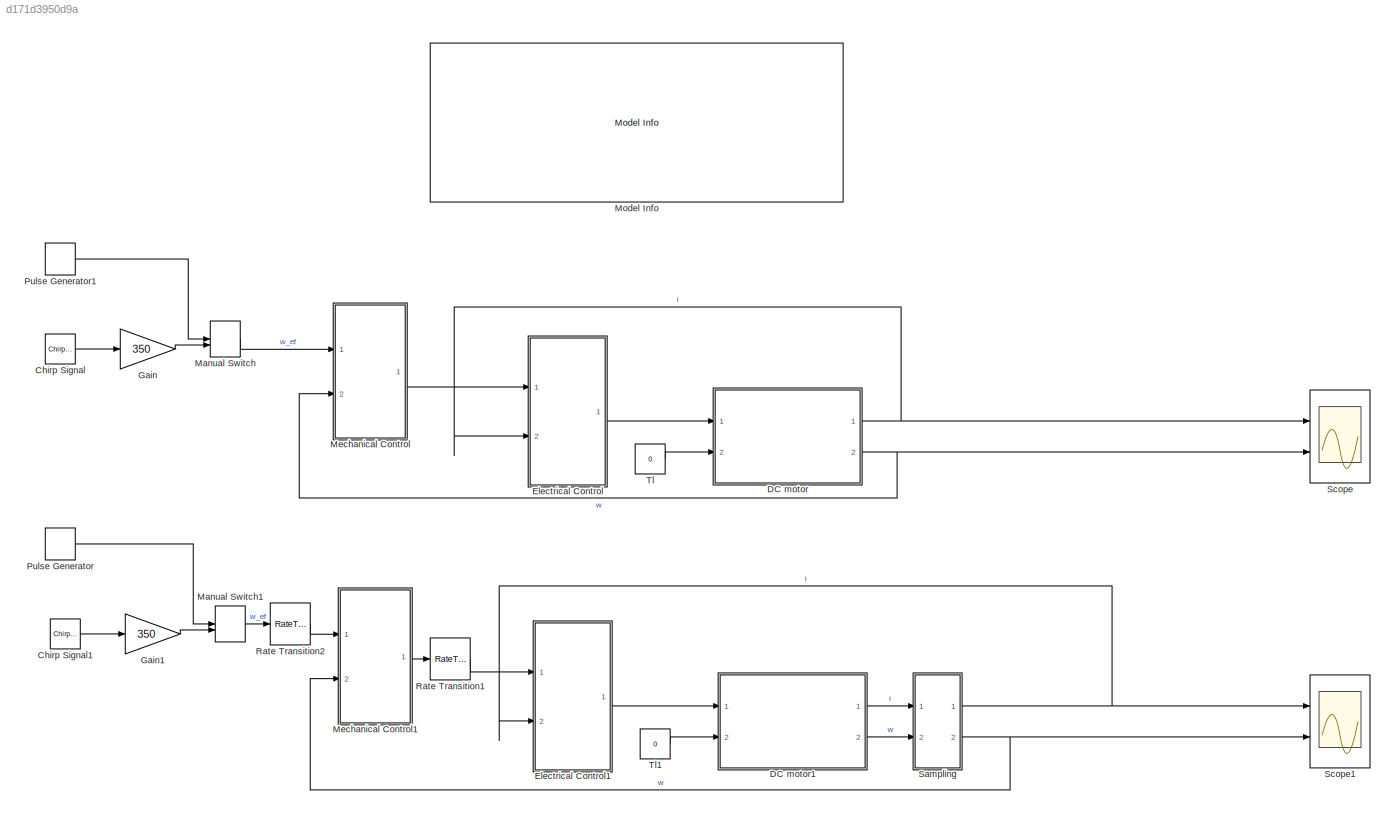
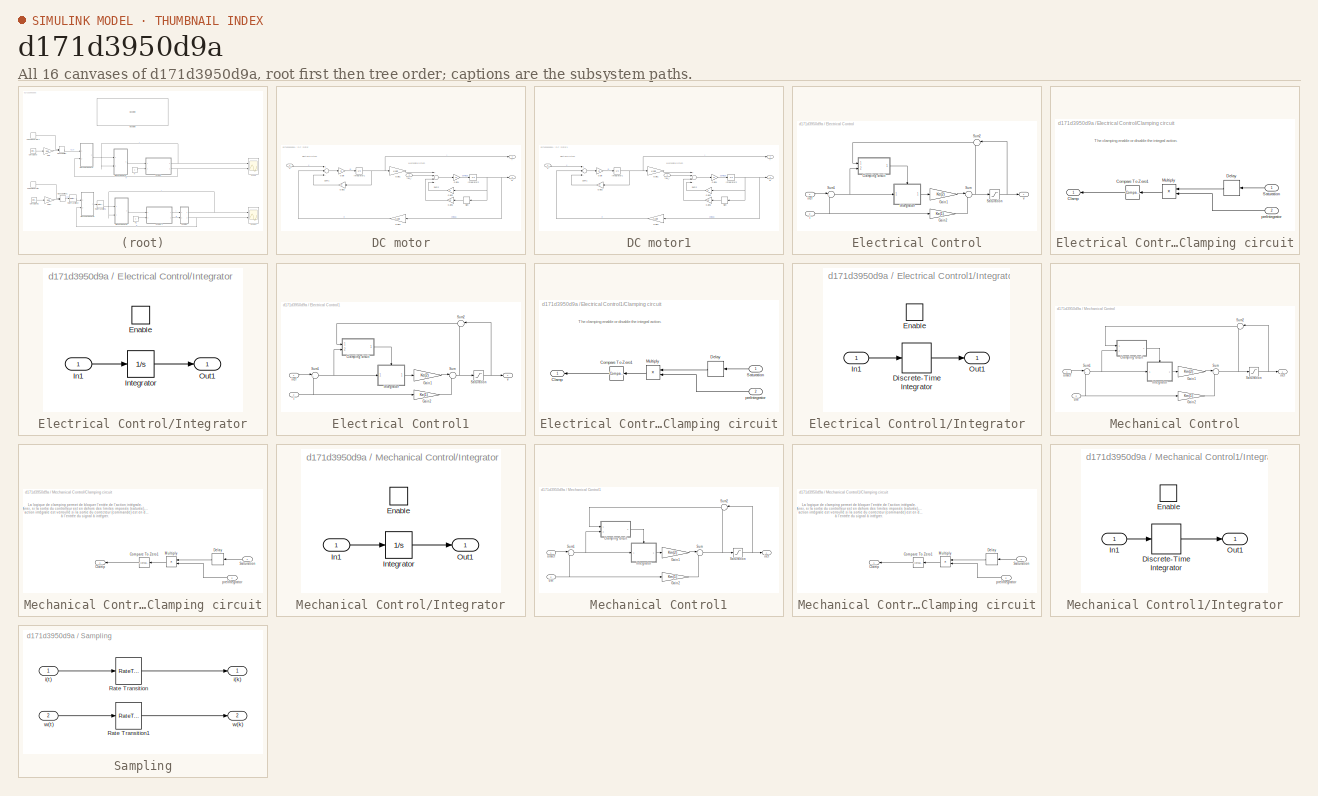
[diagram: thumbnail index - all 16 canvases of the model, root first then tree order]
MODEL slx_d171d3950d9a
KIND model
CONFIG AbsTol = auto
CONFIG EnableMultiTasking = off
CONFIG FixedStep = auto
CONFIG MaxStep = Ts
CONFIG MinStep = auto
CONFIG RelTol = 1e-3
CONFIG SampleTimeConstraint = Unconstrained
CONFIG Solver = VariableStepAuto
CONFIG SolverName = VariableStepAuto
CONFIG StartTime = 0.0
CONFIG StopTime = 25
BLOCK [Reference] Chirp Signal  REF=simulink/Sources/Chirp Signal
  Ports = [0, 1]
  SourceBlock = simulink/Sources/Chirp Signal
  SourceProductBaseCode = SL
  SourceProductName = Simulink
  SourceType = chirp
BLOCK [Reference] Chirp Signal1  REF=simulink/Sources/Chirp Signal
  Ports = [0, 1]
  SourceBlock = simulink/Sources/Chirp Signal
  SourceProductBaseCode = SL
  SourceProductName = Simulink
  SourceType = chirp
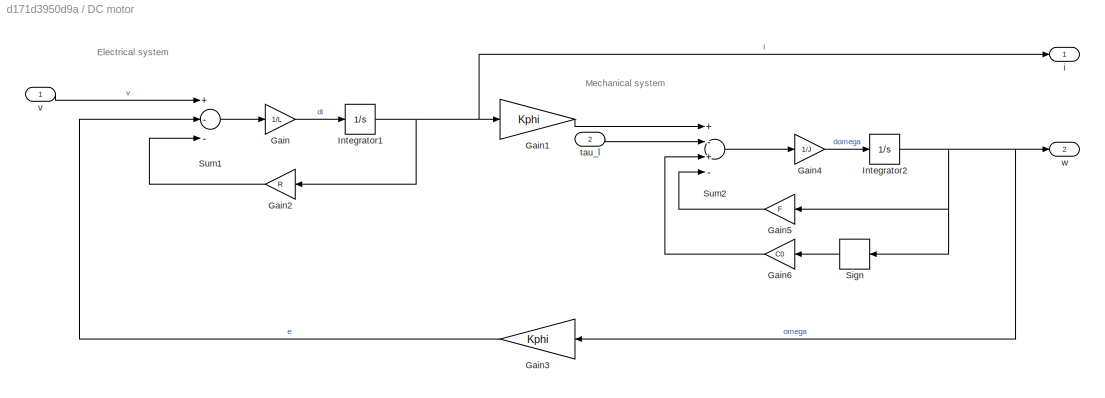
BLOCK [SubSystem] DC motor
  Ports = [2, 2]
  RequestExecContextInheritance = off
BLOCK [Gain] DC motor/Gain
  Gain = 1/L
  OutDataTypeStr = Inherit: Inherit via internal rule
  ParamDataTypeStr = Inherit: Inherit via internal rule
  SaturateOnIntegerOverflow = off
BLOCK [Gain] DC motor/Gain1
  Gain = Kphi
  OutDataTypeStr = Inherit: Inherit via internal rule
  ParamDataTypeStr = Inherit: Inherit via internal rule
  SaturateOnIntegerOverflow = off
BLOCK [Gain] DC motor/Gain2
  Gain = R
  OutDataTypeStr = Inherit: Inherit via internal rule
  ParamDataTypeStr = Inherit: Inherit via internal rule
  SaturateOnIntegerOverflow = off
BLOCK [Gain] DC motor/Gain3  
  Gain = Kphi
  OutDataTypeStr = Inherit: Inherit via internal rule
  ParamDataTypeStr = Inherit: Inherit via internal rule
  SaturateOnIntegerOverflow = off
BLOCK [Gain] DC motor/Gain4
  Gain = 1/J
  OutDataTypeStr = Inherit: Inherit via internal rule
  ParamDataTypeStr = Inherit: Inherit via internal rule
  SaturateOnIntegerOverflow = off
BLOCK [Gain] DC motor/Gain5
  Gain = F
  OutDataTypeStr = Inherit: Inherit via internal rule
  ParamDataTypeStr = Inherit: Inherit via internal rule
  SaturateOnIntegerOverflow = off
BLOCK [Gain] DC motor/Gain6
  Gain = C0
  OutDataTypeStr = Inherit: Inherit via internal rule
  ParamDataTypeStr = Inherit: Inherit via internal rule
  SaturateOnIntegerOverflow = off
BLOCK [Integrator] DC motor/Integrator1
  Ports = [1, 1]
BLOCK [Integrator] DC motor/Integrator2
  Ports = [1, 1]
BLOCK [Signum] DC motor/Sign
BLOCK [Sum] DC motor/Sum1
  InputSameDT = off
  Inputs = +--
  OutDataTypeStr = Inherit: Inherit via internal rule
  Ports = [3, 1]
  SaturateOnIntegerOverflow = off
BLOCK [Sum] DC motor/Sum2
  InputSameDT = off
  Inputs = +-+-
  OutDataTypeStr = Inherit: Inherit via internal rule
  Ports = [4, 1]
  SaturateOnIntegerOverflow = off
BLOCK [Outport] DC motor/i
  IconDisplay = Port number
BLOCK [Inport] DC motor/tau_l
  IconDisplay = Port number
  Port = 2
BLOCK [Inport] DC motor/v
  IconDisplay = Port number
  SampleTime = 0
BLOCK [Outport] DC motor/w
  IconDisplay = Port number
  Port = 2
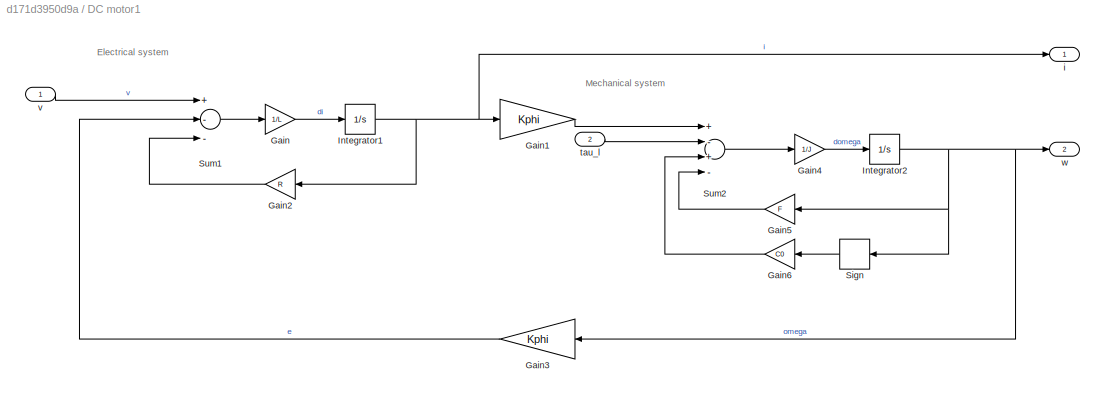
BLOCK [SubSystem] DC motor1
  Ports = [2, 2]
  RequestExecContextInheritance = off
BLOCK [Gain] DC motor1/Gain
  Gain = 1/L
  OutDataTypeStr = Inherit: Inherit via internal rule
  ParamDataTypeStr = Inherit: Inherit via internal rule
  SaturateOnIntegerOverflow = off
BLOCK [Gain] DC motor1/Gain1
  Gain = Kphi
  OutDataTypeStr = Inherit: Inherit via internal rule
  ParamDataTypeStr = Inherit: Inherit via internal rule
  SaturateOnIntegerOverflow = off
BLOCK [Gain] DC motor1/Gain2
  Gain = R
  OutDataTypeStr = Inherit: Inherit via internal rule
  ParamDataTypeStr = Inherit: Inherit via internal rule
  SaturateOnIntegerOverflow = off
BLOCK [Gain] DC motor1/Gain3  
  Gain = Kphi
  OutDataTypeStr = Inherit: Inherit via internal rule
  ParamDataTypeStr = Inherit: Inherit via internal rule
  SaturateOnIntegerOverflow = off
BLOCK [Gain] DC motor1/Gain4
  Gain = 1/J
  OutDataTypeStr = Inherit: Inherit via internal rule
  ParamDataTypeStr = Inherit: Inherit via internal rule
  SaturateOnIntegerOverflow = off
BLOCK [Gain] DC motor1/Gain5
  Gain = F
  OutDataTypeStr = Inherit: Inherit via internal rule
  ParamDataTypeStr = Inherit: Inherit via internal rule
  SaturateOnIntegerOverflow = off
BLOCK [Gain] DC motor1/Gain6
  Gain = C0
  OutDataTypeStr = Inherit: Inherit via internal rule
  ParamDataTypeStr = Inherit: Inherit via internal rule
  SaturateOnIntegerOverflow = off
BLOCK [Integrator] DC motor1/Integrator1
  Ports = [1, 1]
BLOCK [Integrator] DC motor1/Integrator2
  Ports = [1, 1]
BLOCK [Signum] DC motor1/Sign
BLOCK [Sum] DC motor1/Sum1
  InputSameDT = off
  Inputs = +--
  OutDataTypeStr = Inherit: Inherit via internal rule
  Ports = [3, 1]
  SaturateOnIntegerOverflow = off
BLOCK [Sum] DC motor1/Sum2
  InputSameDT = off
  Inputs = +-+-
  OutDataTypeStr = Inherit: Inherit via internal rule
  Ports = [4, 1]
  SaturateOnIntegerOverflow = off
BLOCK [Outport] DC motor1/i
  IconDisplay = Port number
BLOCK [Inport] DC motor1/tau_l
  IconDisplay = Port number
  Port = 2
BLOCK [Inport] DC motor1/v
  IconDisplay = Port number
  SampleTime = 0
BLOCK [Outport] DC motor1/w
  IconDisplay = Port number
  Port = 2
BLOCK [SubSystem] Electrical Control
  Ports = [2, 1]
  RequestExecContextInheritance = off
BLOCK [SubSystem] Electrical Control/Clamping circuit
  Ports = [2, 1]
  RequestExecContextInheritance = off
BLOCK [Outport] Electrical Control/Clamping circuit/Clamp
  DisableCoverage = on
  IconDisplay = Port number
BLOCK [Reference] Electrical Control/Clamping circuit/Compare To Zero1  REF=simulink/Logic and Bit
Operations/Compare
To Zero
  Ports = [1, 1]
  SourceBlock = simulink/Logic and Bit\nOperations/Compare\nTo Zero
  SourceProductBaseCode = SL
  SourceProductName = Simulink
  SourceType = Compare To Zero
BLOCK [Delay] Electrical Control/Clamping circuit/Delay
  DelayLength = 1
  InitialCondition = 0
  InputPortMap = u0
  Ports = [1, 1]
BLOCK [Product] Electrical Control/Clamping circuit/Multiply
  InputSameDT = off
  OutDataTypeStr = Inherit: Inherit via internal rule
  Ports = [2, 1]
  RndMeth = Floor
  SaturateOnIntegerOverflow = off
BLOCK [Inport] Electrical Control/Clamping circuit/Saturation
  DisableCoverage = on
  IconDisplay = Port number
BLOCK [Inport] Electrical Control/Clamping circuit/preIntegrator
  DisableCoverage = on
  IconDisplay = Port number
  Port = 2
  VarSizeSig = No
BLOCK [Gain] Electrical Control/Gain1
  Gain = Ke(2)
  OutDataTypeStr = Inherit: Inherit via internal rule
  ParamDataTypeStr = Inherit: Inherit via internal rule
  SaturateOnIntegerOverflow = off
BLOCK [Gain] Electrical Control/Gain2
  Gain = Ke(1)
  OutDataTypeStr = Inherit: Inherit via internal rule
  ParamDataTypeStr = Inherit: Inherit via internal rule
  SaturateOnIntegerOverflow = off
BLOCK [SubSystem] Electrical Control/Integrator
  Ports = [1, 1, 1]
  RequestExecContextInheritance = off
BLOCK [EnablePort] Electrical Control/Integrator/Enable
  Ports = []
BLOCK [Inport] Electrical Control/Integrator/In1
  IconDisplay = Port number
BLOCK [Integrator] Electrical Control/Integrator/Integrator
  Ports = [1, 1]
BLOCK [Outport] Electrical Control/Integrator/Out1
  IconDisplay = Port number
BLOCK [Saturate] Electrical Control/Saturation
  InputPortMap = u0
  LowerLimit = Vmin
  Ports = [1, 1]
  UpperLimit = Vmax
BLOCK [Sum] Electrical Control/Sum
  IconShape = round
  InputSameDT = off
  Inputs = |--
  OutDataTypeStr = Inherit: Inherit via internal rule
  Ports = [2, 1]
  SaturateOnIntegerOverflow = off
BLOCK [Sum] Electrical Control/Sum1
  IconShape = round
  InputSameDT = off
  Inputs = |+-
  OutDataTypeStr = Inherit: Inherit via internal rule
  Ports = [2, 1]
  SaturateOnIntegerOverflow = off
BLOCK [Sum] Electrical Control/Sum2
  AccumDataTypeStr = Inherit: Same as first input
  IconShape = round
  InputSameDT = off
  Inputs = |-+
  OutDataTypeStr = Inherit: Same as accumulator
  Ports = [2, 1]
  SaturateOnIntegerOverflow = off
BLOCK [Inport] Electrical Control/i
  IconDisplay = Port number
  Port = 2
BLOCK [Inport] Electrical Control/iref
  IconDisplay = Port number
BLOCK [Outport] Electrical Control/v
  IconDisplay = Port number
BLOCK [SubSystem] Electrical Control1
  Ports = [2, 1]
  RequestExecContextInheritance = off
BLOCK [SubSystem] Electrical Control1/Clamping circuit
  Ports = [2, 1]
  RequestExecContextInheritance = off
BLOCK [Outport] Electrical Control1/Clamping circuit/Clamp
  DisableCoverage = on
  IconDisplay = Port number
BLOCK [Reference] Electrical Control1/Clamping circuit/Compare To Zero1  REF=simulink/Logic and Bit
Operations/Compare
To Zero
  Ports = [1, 1]
  SourceBlock = simulink/Logic and Bit\nOperations/Compare\nTo Zero
  SourceProductBaseCode = SL
  SourceProductName = Simulink
  SourceType = Compare To Zero
BLOCK [Delay] Electrical Control1/Clamping circuit/Delay
  DelayLength = 1
  InitialCondition = 0
  InputPortMap = u0
  Ports = [1, 1]
BLOCK [Product] Electrical Control1/Clamping circuit/Multiply
  InputSameDT = off
  OutDataTypeStr = Inherit: Inherit via internal rule
  Ports = [2, 1]
  RndMeth = Floor
  SaturateOnIntegerOverflow = off
BLOCK [Inport] Electrical Control1/Clamping circuit/Saturation
  DisableCoverage = on
  IconDisplay = Port number
BLOCK [Inport] Electrical Control1/Clamping circuit/preIntegrator
  DisableCoverage = on
  IconDisplay = Port number
  Port = 2
  VarSizeSig = No
BLOCK [Gain] Electrical Control1/Gain1
  Gain = Ke(2)
  OutDataTypeStr = Inherit: Inherit via internal rule
  ParamDataTypeStr = Inherit: Inherit via internal rule
  SaturateOnIntegerOverflow = off
BLOCK [Gain] Electrical Control1/Gain2
  Gain = Ke(1)
  OutDataTypeStr = Inherit: Inherit via internal rule
  ParamDataTypeStr = Inherit: Inherit via internal rule
  SaturateOnIntegerOverflow = off
BLOCK [SubSystem] Electrical Control1/Integrator
  Ports = [1, 1, 1]
  RequestExecContextInheritance = off
BLOCK [DiscreteIntegrator] Electrical Control1/Integrator/Discrete-Time Integrator
  ICPrevOutput = DiscIntNeverNeededParam
  ICPrevScaledInput = DiscIntNeverNeededParam
  InitialConditionSetting = Auto
  Ports = [1, 1]
  SampleTime = Ts
BLOCK [EnablePort] Electrical Control1/Integrator/Enable
  Ports = []
BLOCK [Inport] Electrical Control1/Integrator/In1
  IconDisplay = Port number
BLOCK [Outport] Electrical Control1/Integrator/Out1
  IconDisplay = Port number
BLOCK [Saturate] Electrical Control1/Saturation
  InputPortMap = u0
  LowerLimit = Vmin
  Ports = [1, 1]
  UpperLimit = Vmax
BLOCK [Sum] Electrical Control1/Sum
  IconShape = round
  InputSameDT = off
  Inputs = |--
  OutDataTypeStr = Inherit: Inherit via internal rule
  Ports = [2, 1]
  SaturateOnIntegerOverflow = off
BLOCK [Sum] Electrical Control1/Sum1
  IconShape = round
  InputSameDT = off
  Inputs = |+-
  OutDataTypeStr = Inherit: Inherit via internal rule
  Ports = [2, 1]
  SaturateOnIntegerOverflow = off
BLOCK [Sum] Electrical Control1/Sum2
  AccumDataTypeStr = Inherit: Same as first input
  IconShape = round
  InputSameDT = off
  Inputs = |-+
  OutDataTypeStr = Inherit: Same as accumulator
  Ports = [2, 1]
  SaturateOnIntegerOverflow = off
BLOCK [Inport] Electrical Control1/i
  IconDisplay = Port number
  Port = 2
BLOCK [Inport] Electrical Control1/iref
  IconDisplay = Port number
BLOCK [Outport] Electrical Control1/v
  IconDisplay = Port number
BLOCK [Gain] Gain
  Gain = 350
  OutDataTypeStr = Inherit: Inherit via back propagation
  ParamDataTypeStr = Inherit: Inherit via internal rule
  SaturateOnIntegerOverflow = off
BLOCK [Gain] Gain1
  Gain = 350
  OutDataTypeStr = Inherit: Inherit via back propagation
  ParamDataTypeStr = Inherit: Inherit via internal rule
  SaturateOnIntegerOverflow = off
BLOCK [ManualSwitch] Manual Switch
BLOCK [ManualSwitch] Manual Switch1
BLOCK [SubSystem] Mechanical Control
  Ports = [2, 1]
  RequestExecContextInheritance = off
BLOCK [SubSystem] Mechanical Control/Clamping circuit
  Ports = [2, 1]
  RequestExecContextInheritance = off
BLOCK [Outport] Mechanical Control/Clamping circuit/Clamp
  DisableCoverage = on
  IconDisplay = Port number
BLOCK [Reference] Mechanical Control/Clamping circuit/Compare To Zero1  REF=simulink/Logic and Bit
Operations/Compare
To Zero
  Ports = [1, 1]
  SourceBlock = simulink/Logic and Bit\nOperations/Compare\nTo Zero
  SourceProductBaseCode = SL
  SourceProductName = Simulink
  SourceType = Compare To Zero
BLOCK [Delay] Mechanical Control/Clamping circuit/Delay
  DelayLength = 1
  InitialCondition = 0
  InputPortMap = u0
  Ports = [1, 1]
BLOCK [Product] Mechanical Control/Clamping circuit/Multiply
  InputSameDT = off
  OutDataTypeStr = Inherit: Inherit via internal rule
  Ports = [2, 1]
  RndMeth = Floor
  SaturateOnIntegerOverflow = off
BLOCK [Inport] Mechanical Control/Clamping circuit/Saturation
  DisableCoverage = on
  IconDisplay = Port number
BLOCK [Inport] Mechanical Control/Clamping circuit/preIntegrator
  DisableCoverage = on
  IconDisplay = Port number
  Port = 2
  VarSizeSig = No
BLOCK [Gain] Mechanical Control/Gain1
  Gain = Km(2)
  OutDataTypeStr = Inherit: Inherit via internal rule
  ParamDataTypeStr = Inherit: Inherit via internal rule
  SaturateOnIntegerOverflow = off
BLOCK [Gain] Mechanical Control/Gain2
  Gain = Km(1)
  OutDataTypeStr = Inherit: Inherit via internal rule
  ParamDataTypeStr = Inherit: Inherit via internal rule
  SaturateOnIntegerOverflow = off
BLOCK [SubSystem] Mechanical Control/Integrator
  Ports = [1, 1, 1]
  RequestExecContextInheritance = off
BLOCK [EnablePort] Mechanical Control/Integrator/Enable
  Ports = []
BLOCK [Inport] Mechanical Control/Integrator/In1
  IconDisplay = Port number
BLOCK [Integrator] Mechanical Control/Integrator/Integrator
  Ports = [1, 1]
BLOCK [Outport] Mechanical Control/Integrator/Out1
  IconDisplay = Port number
BLOCK [Saturate] Mechanical Control/Saturation
  InputPortMap = u0
  LowerLimit = Imin
  Ports = [1, 1]
  UpperLimit = Imax
BLOCK [Sum] Mechanical Control/Sum
  IconShape = round
  InputSameDT = off
  Inputs = |--
  OutDataTypeStr = Inherit: Inherit via internal rule
  Ports = [2, 1]
  SaturateOnIntegerOverflow = off
BLOCK [Sum] Mechanical Control/Sum1
  IconShape = round
  InputSameDT = off
  Inputs = |+-
  OutDataTypeStr = Inherit: Inherit via internal rule
  Ports = [2, 1]
  SaturateOnIntegerOverflow = off
BLOCK [Sum] Mechanical Control/Sum2
  AccumDataTypeStr = Inherit: Same as first input
  IconShape = round
  InputSameDT = off
  Inputs = |-+
  OutDataTypeStr = Inherit: Same as accumulator
  Ports = [2, 1]
  SaturateOnIntegerOverflow = off
BLOCK [Outport] Mechanical Control/iref
  IconDisplay = Port number
BLOCK [Inport] Mechanical Control/om
  IconDisplay = Port number
  Port = 2
BLOCK [Inport] Mechanical Control/omref
  IconDisplay = Port number
BLOCK [SubSystem] Mechanical Control1
  Ports = [2, 1]
  RequestExecContextInheritance = off
BLOCK [SubSystem] Mechanical Control1/Clamping circuit
  Ports = [2, 1]
  RequestExecContextInheritance = off
BLOCK [Outport] Mechanical Control1/Clamping circuit/Clamp
  DisableCoverage = on
  IconDisplay = Port number
BLOCK [Reference] Mechanical Control1/Clamping circuit/Compare To Zero1  REF=simulink/Logic and Bit
Operations/Compare
To Zero
  Ports = [1, 1]
  SourceBlock = simulink/Logic and Bit\nOperations/Compare\nTo Zero
  SourceProductBaseCode = SL
  SourceProductName = Simulink
  SourceType = Compare To Zero
BLOCK [Delay] Mechanical Control1/Clamping circuit/Delay
  DelayLength = 1
  InitialCondition = 0
  InputPortMap = u0
  Ports = [1, 1]
BLOCK [Product] Mechanical Control1/Clamping circuit/Multiply
  InputSameDT = off
  OutDataTypeStr = Inherit: Inherit via internal rule
  Ports = [2, 1]
  RndMeth = Floor
  SaturateOnIntegerOverflow = off
BLOCK [Inport] Mechanical Control1/Clamping circuit/Saturation
  DisableCoverage = on
  IconDisplay = Port number
BLOCK [Inport] Mechanical Control1/Clamping circuit/preIntegrator
  DisableCoverage = on
  IconDisplay = Port number
  Port = 2
  VarSizeSig = No
BLOCK [Gain] Mechanical Control1/Gain1
  Gain = Km(2)
  OutDataTypeStr = Inherit: Inherit via internal rule
  ParamDataTypeStr = Inherit: Inherit via internal rule
  SaturateOnIntegerOverflow = off
BLOCK [Gain] Mechanical Control1/Gain2
  Gain = Km(1)
  OutDataTypeStr = Inherit: Inherit via internal rule
  ParamDataTypeStr = Inherit: Inherit via internal rule
  SaturateOnIntegerOverflow = off
BLOCK [SubSystem] Mechanical Control1/Integrator
  Ports = [1, 1, 1]
  RequestExecContextInheritance = off
BLOCK [DiscreteIntegrator] Mechanical Control1/Integrator/Discrete-Time Integrator
  ICPrevOutput = DiscIntNeverNeededParam
  ICPrevScaledInput = DiscIntNeverNeededParam
  InitialConditionSetting = Auto
  Ports = [1, 1]
  SampleTime = TsMeca
BLOCK [EnablePort] Mechanical Control1/Integrator/Enable
  Ports = []
BLOCK [Inport] Mechanical Control1/Integrator/In1
  IconDisplay = Port number
BLOCK [Outport] Mechanical Control1/Integrator/Out1
  IconDisplay = Port number
BLOCK [Saturate] Mechanical Control1/Saturation
  InputPortMap = u0
  LowerLimit = Imin
  Ports = [1, 1]
  UpperLimit = Imax
BLOCK [Sum] Mechanical Control1/Sum
  IconShape = round
  InputSameDT = off
  Inputs = |--
  OutDataTypeStr = Inherit: Inherit via internal rule
  Ports = [2, 1]
  SaturateOnIntegerOverflow = off
BLOCK [Sum] Mechanical Control1/Sum1
  IconShape = round
  InputSameDT = off
  Inputs = |+-
  OutDataTypeStr = Inherit: Inherit via internal rule
  Ports = [2, 1]
  SaturateOnIntegerOverflow = off
BLOCK [Sum] Mechanical Control1/Sum2
  AccumDataTypeStr = Inherit: Same as first input
  IconShape = round
  InputSameDT = off
  Inputs = |-+
  OutDataTypeStr = Inherit: Same as accumulator
  Ports = [2, 1]
  SaturateOnIntegerOverflow = off
BLOCK [Outport] Mechanical Control1/iref
  IconDisplay = Port number
BLOCK [Inport] Mechanical Control1/om
  IconDisplay = Port number
  Port = 2
BLOCK [Inport] Mechanical Control1/omref
  IconDisplay = Port number
BLOCK [Reference] Model Info  REF=simulink/Model-Wide
Utilities/Model Info
  Ports = []
  SourceBlock = simulink/Model-Wide\nUtilities/Model Info
  SourceProductBaseCode = SL
  SourceProductName = Simulink
  SourceType = CMBlock
BLOCK [DiscretePulseGenerator] Pulse Generator
  Amplitude = 200
  PhaseDelay = 0.5
  Ports = [0, 1]
  PulseType = Time based
  PulseWidth = 50
  SampleTime = -1
BLOCK [DiscretePulseGenerator] Pulse Generator1
  Amplitude = 200
  PhaseDelay = 0.5
  Ports = [0, 1]
  PulseType = Time based
  PulseWidth = 50
  SampleTime = -1
BLOCK [RateTransition] Rate Transition1
  Deterministic = off
BLOCK [RateTransition] Rate Transition2
  Deterministic = off
BLOCK [SubSystem] Sampling
  Ports = [2, 2]
  RequestExecContextInheritance = off
BLOCK [RateTransition] Sampling/Rate Transition
  Deterministic = off
  OutPortSampleTime = Ts
BLOCK [RateTransition] Sampling/Rate Transition1
  Deterministic = off
  OutPortSampleTime = TsMeca
BLOCK [Outport] Sampling/i(k)
  IconDisplay = Port number
BLOCK [Inport] Sampling/i(t)
  IconDisplay = Port number
BLOCK [Outport] Sampling/w(k)
  IconDisplay = Port number
  Port = 2
BLOCK [Inport] Sampling/w(t)
  IconDisplay = Port number
  Port = 2
BLOCK [Scope] Scope
  Floating = off
  NumInputPorts = 2
  Ports = [2]
  ScopeSpecificationString = Simulink.scopes.TimeScopeBlockCfg('CurrentConfiguration', extmgr.ConfigurationSet(extmgr.Configuration('Core','General UI',true),extmgr.Configuration('Core','Source UI',true),extmgr.Configuration('Sources','WiredSimulink',true),extmgr.Configuration('Visuals','Time Domain',true,'SerializedDisplays',{struct('MinYLimReal','-3.55718','MaxYLimReal','3.89083','YLabelReal','','MinYLimMag','0.00000','MaxY...<+1956ch>
BLOCK [Scope] Scope1
  Floating = off
  NumInputPorts = 2
  Ports = [2]
  ScopeSpecificationString = Simulink.scopes.TimeScopeBlockCfg('CurrentConfiguration', extmgr.ConfigurationSet(extmgr.Configuration('Core','General UI',true),extmgr.Configuration('Core','Source UI',true),extmgr.Configuration('Sources','WiredSimulink',true,'DataLoggingVariableName','ScopeData1'),extmgr.Configuration('Visuals','Time Domain',true,'SerializedDisplays',{struct('MinYLimReal','-5.66771','MaxYLimReal','5.80576','YLab...<+2042ch>
BLOCK [Constant] Tl
  Value = 0
BLOCK [Constant] Tl1
  Value = 0
ANNOTATION DC motor: Electrical system
ANNOTATION DC motor: Mechanical system
ANNOTATION DC motor1: Electrical system
ANNOTATION DC motor1: Mechanical system
ANNOTATION Electrical Control/Clamping circuit: The clamping enable or disable the integral action.
ANNOTATION Electrical Control1/Clamping circuit: The clamping enable or disable the integral action.
ANNOTATION Mechanical Control/Clamping circuit: La logique de clamping permet de bloquer l'entée de l'action intégrale. Ainsi, si la sortie du controlleur est en dehors des limites imposés (saturée), alors l'action intégrale du correcteur est verrouyé (clamping). L'action intégrale est verroullé si la sortie du correcteur (commande) est en dehors des saturations et que le signe de cette sortie est égale à l'entrée du signal à intégrer.
ANNOTATION Mechanical Control1/Clamping circuit: La logique de clamping permet de bloquer l'entée de l'action intégrale. Ainsi, si la sortie du controlleur est en dehors des limites imposés (saturée), alors l'action intégrale du correcteur est verrouyé (clamping). L'action intégrale est verroullé si la sortie du correcteur (commande) est en dehors des saturations et que le signe de cette sortie est égale à l'entrée du signal à intégrer.
LINE Chirp Signal1:1 -> Gain1:1
LINE Chirp Signal:1 -> Gain:1
LINE DC motor/Gain1:1 -> DC motor/Sum2:1
LINE DC motor/Gain2:1 -> DC motor/Sum1:3
LINE DC motor/Gain3  :1 -> DC motor/Sum1:2
LINE DC motor/Gain4:1 -> DC motor/Integrator2:1
LINE DC motor/Gain5:1 -> DC motor/Sum2:4
LINE DC motor/Gain6:1 -> DC motor/Sum2:3
LINE DC motor/Gain:1 -> DC motor/Integrator1:1
NET DC motor/Integrator1:1 -> DC motor/Gain1:1, DC motor/Gain2:1, DC motor/i:1
NET DC motor/Integrator2:1 -> DC motor/Gain3  :1, DC motor/Gain5:1, DC motor/Sign:1, DC motor/w:1
LINE DC motor/Sign:1 -> DC motor/Gain6:1
LINE DC motor/Sum1:1 -> DC motor/Gain:1
LINE DC motor/Sum2:1 -> DC motor/Gain4:1
LINE DC motor/tau_l:1 -> DC motor/Sum2:2
LINE DC motor/v:1 -> DC motor/Sum1:1
LINE DC motor1/Gain1:1 -> DC motor1/Sum2:1
LINE DC motor1/Gain2:1 -> DC motor1/Sum1:3
LINE DC motor1/Gain3  :1 -> DC motor1/Sum1:2
LINE DC motor1/Gain4:1 -> DC motor1/Integrator2:1
LINE DC motor1/Gain5:1 -> DC motor1/Sum2:4
LINE DC motor1/Gain6:1 -> DC motor1/Sum2:3
LINE DC motor1/Gain:1 -> DC motor1/Integrator1:1
NET DC motor1/Integrator1:1 -> DC motor1/Gain1:1, DC motor1/Gain2:1, DC motor1/i:1
NET DC motor1/Integrator2:1 -> DC motor1/Gain3  :1, DC motor1/Gain5:1, DC motor1/Sign:1, DC motor1/w:1
LINE DC motor1/Sign:1 -> DC motor1/Gain6:1
LINE DC motor1/Sum1:1 -> DC motor1/Gain:1
LINE DC motor1/Sum2:1 -> DC motor1/Gain4:1
LINE DC motor1/tau_l:1 -> DC motor1/Sum2:2
LINE DC motor1/v:1 -> DC motor1/Sum1:1
LINE DC motor1:1 -> Sampling:1
LINE DC motor1:2 -> Sampling:2
NET DC motor:1 -> Electrical Control:2, Scope:1
NET DC motor:2 -> Mechanical Control:2, Scope:2
LINE Electrical Control/Clamping circuit/Compare To Zero1:1 -> Electrical Control/Clamping circuit/Clamp:1
LINE Electrical Control/Clamping circuit/Delay:1 -> Electrical Control/Clamping circuit/Multiply:1
LINE Electrical Control/Clamping circuit/Multiply:1 -> Electrical Control/Clamping circuit/Compare To Zero1:1
LINE Electrical Control/Clamping circuit/Saturation:1 -> Electrical Control/Clamping circuit/Delay:1
LINE Electrical Control/Clamping circuit/preIntegrator:1 -> Electrical Control/Clamping circuit/Multiply:2
LINE Electrical Control/Clamping circuit:1 -> Electrical Control/Integrator:enable
LINE Electrical Control/Gain1:1 -> Electrical Control/Sum:1
LINE Electrical Control/Gain2:1 -> Electrical Control/Sum:2
LINE Electrical Control/Integrator/In1:1 -> Electrical Control/Integrator/Integrator:1
LINE Electrical Control/Integrator/Integrator:1 -> Electrical Control/Integrator/Out1:1
LINE Electrical Control/Integrator:1 -> Electrical Control/Gain1:1
NET Electrical Control/Saturation:1 -> Electrical Control/Sum2:1, Electrical Control/v:1
NET Electrical Control/Sum1:1 -> Electrical Control/Clamping circuit:2, Electrical Control/Integrator:1
LINE Electrical Control/Sum2:1 -> Electrical Control/Clamping circuit:1
NET Electrical Control/Sum:1 -> Electrical Control/Saturation:1, Electrical Control/Sum2:2
NET Electrical Control/i:1 -> Electrical Control/Gain2:1, Electrical Control/Sum1:2
LINE Electrical Control/iref:1 -> Electrical Control/Sum1:1
LINE Electrical Control1/Clamping circuit/Compare To Zero1:1 -> Electrical Control1/Clamping circuit/Clamp:1
LINE Electrical Control1/Clamping circuit/Delay:1 -> Electrical Control1/Clamping circuit/Multiply:1
LINE Electrical Control1/Clamping circuit/Multiply:1 -> Electrical Control1/Clamping circuit/Compare To Zero1:1
LINE Electrical Control1/Clamping circuit/Saturation:1 -> Electrical Control1/Clamping circuit/Delay:1
LINE Electrical Control1/Clamping circuit/preIntegrator:1 -> Electrical Control1/Clamping circuit/Multiply:2
LINE Electrical Control1/Clamping circuit:1 -> Electrical Control1/Integrator:enable
LINE Electrical Control1/Gain1:1 -> Electrical Control1/Sum:1
LINE Electrical Control1/Gain2:1 -> Electrical Control1/Sum:2
LINE Electrical Control1/Integrator/Discrete-Time Integrator:1 -> Electrical Control1/Integrator/Out1:1
LINE Electrical Control1/Integrator/In1:1 -> Electrical Control1/Integrator/Discrete-Time Integrator:1
LINE Electrical Control1/Integrator:1 -> Electrical Control1/Gain1:1
NET Electrical Control1/Saturation:1 -> Electrical Control1/Sum2:1, Electrical Control1/v:1
NET Electrical Control1/Sum1:1 -> Electrical Control1/Clamping circuit:2, Electrical Control1/Integrator:1
LINE Electrical Control1/Sum2:1 -> Electrical Control1/Clamping circuit:1
NET Electrical Control1/Sum:1 -> Electrical Control1/Saturation:1, Electrical Control1/Sum2:2
NET Electrical Control1/i:1 -> Electrical Control1/Gain2:1, Electrical Control1/Sum1:2
LINE Electrical Control1/iref:1 -> Electrical Control1/Sum1:1
LINE Electrical Control1:1 -> DC motor1:1
LINE Electrical Control:1 -> DC motor:1
LINE Gain1:1 -> Manual Switch1:2
LINE Gain:1 -> Manual Switch:2
LINE Manual Switch1:1 -> Rate Transition2:1
LINE Manual Switch:1 -> Mechanical Control:1
LINE Mechanical Control/Clamping circuit/Compare To Zero1:1 -> Mechanical Control/Clamping circuit/Clamp:1
LINE Mechanical Control/Clamping circuit/Delay:1 -> Mechanical Control/Clamping circuit/Multiply:1
LINE Mechanical Control/Clamping circuit/Multiply:1 -> Mechanical Control/Clamping circuit/Compare To Zero1:1
LINE Mechanical Control/Clamping circuit/Saturation:1 -> Mechanical Control/Clamping circuit/Delay:1
LINE Mechanical Control/Clamping circuit/preIntegrator:1 -> Mechanical Control/Clamping circuit/Multiply:2
LINE Mechanical Control/Clamping circuit:1 -> Mechanical Control/Integrator:enable
LINE Mechanical Control/Gain1:1 -> Mechanical Control/Sum:1
LINE Mechanical Control/Gain2:1 -> Mechanical Control/Sum:2
LINE Mechanical Control/Integrator/In1:1 -> Mechanical Control/Integrator/Integrator:1
LINE Mechanical Control/Integrator/Integrator:1 -> Mechanical Control/Integrator/Out1:1
LINE Mechanical Control/Integrator:1 -> Mechanical Control/Gain1:1
NET Mechanical Control/Saturation:1 -> Mechanical Control/Sum2:1, Mechanical Control/iref:1
NET Mechanical Control/Sum1:1 -> Mechanical Control/Clamping circuit:2, Mechanical Control/Integrator:1
LINE Mechanical Control/Sum2:1 -> Mechanical Control/Clamping circuit:1
NET Mechanical Control/Sum:1 -> Mechanical Control/Saturation:1, Mechanical Control/Sum2:2
NET Mechanical Control/om:1 -> Mechanical Control/Gain2:1, Mechanical Control/Sum1:2
LINE Mechanical Control/omref:1 -> Mechanical Control/Sum1:1
LINE Mechanical Control1/Clamping circuit/Compare To Zero1:1 -> Mechanical Control1/Clamping circuit/Clamp:1
LINE Mechanical Control1/Clamping circuit/Delay:1 -> Mechanical Control1/Clamping circuit/Multiply:1
LINE Mechanical Control1/Clamping circuit/Multiply:1 -> Mechanical Control1/Clamping circuit/Compare To Zero1:1
LINE Mechanical Control1/Clamping circuit/Saturation:1 -> Mechanical Control1/Clamping circuit/Delay:1
LINE Mechanical Control1/Clamping circuit/preIntegrator:1 -> Mechanical Control1/Clamping circuit/Multiply:2
LINE Mechanical Control1/Clamping circuit:1 -> Mechanical Control1/Integrator:enable
LINE Mechanical Control1/Gain1:1 -> Mechanical Control1/Sum:1
LINE Mechanical Control1/Gain2:1 -> Mechanical Control1/Sum:2
LINE Mechanical Control1/Integrator/Discrete-Time Integrator:1 -> Mechanical Control1/Integrator/Out1:1
LINE Mechanical Control1/Integrator/In1:1 -> Mechanical Control1/Integrator/Discrete-Time Integrator:1
LINE Mechanical Control1/Integrator:1 -> Mechanical Control1/Gain1:1
NET Mechanical Control1/Saturation:1 -> Mechanical Control1/Sum2:1, Mechanical Control1/iref:1
NET Mechanical Control1/Sum1:1 -> Mechanical Control1/Clamping circuit:2, Mechanical Control1/Integrator:1
LINE Mechanical Control1/Sum2:1 -> Mechanical Control1/Clamping circuit:1
NET Mechanical Control1/Sum:1 -> Mechanical Control1/Saturation:1, Mechanical Control1/Sum2:2
NET Mechanical Control1/om:1 -> Mechanical Control1/Gain2:1, Mechanical Control1/Sum1:2
LINE Mechanical Control1/omref:1 -> Mechanical Control1/Sum1:1
LINE Mechanical Control1:1 -> Rate Transition1:1
LINE Mechanical Control:1 -> Electrical Control:1
LINE Pulse Generator1:1 -> Manual Switch:1
LINE Pulse Generator:1 -> Manual Switch1:1
LINE Rate Transition1:1 -> Electrical Control1:1
LINE Rate Transition2:1 -> Mechanical Control1:1
LINE Sampling/Rate Transition1:1 -> Sampling/w(k):1
LINE Sampling/Rate Transition:1 -> Sampling/i(k):1
LINE Sampling/i(t):1 -> Sampling/Rate Transition:1
LINE Sampling/w(t):1 -> Sampling/Rate Transition1:1
NET Sampling:1 -> Electrical Control1:2, Scope1:1
NET Sampling:2 -> Mechanical Control1:2, Scope1:2
LINE Tl1:1 -> DC motor1:2
LINE Tl:1 -> DC motor:2
note: NET lines group one-source signal fan-out (src -> all destinations, sorted); 1:1 wires keep LINE
